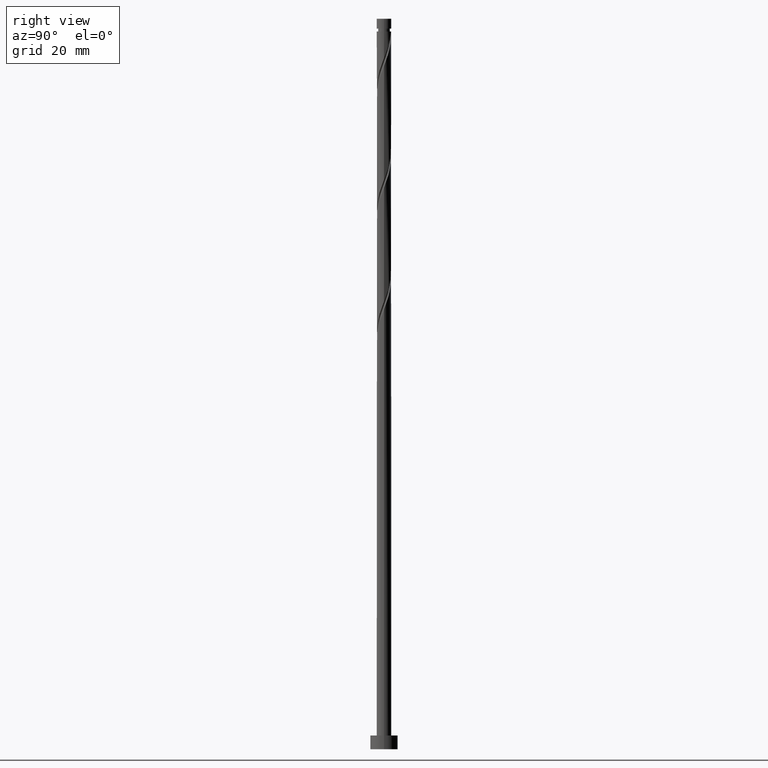
[diagram: clean part render]
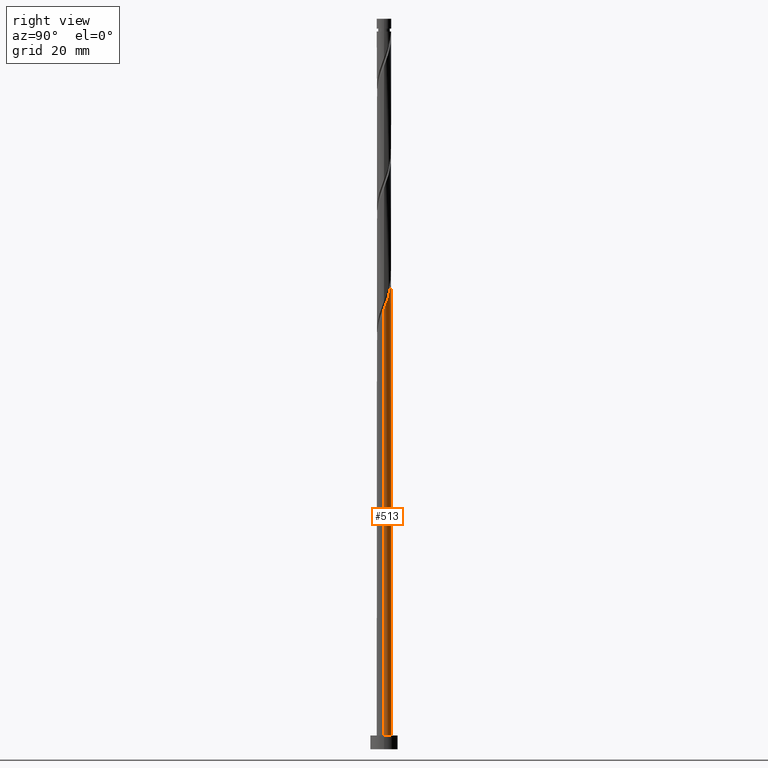
[diagram: same view with one face highlighted and labeled with its STEP entity id]
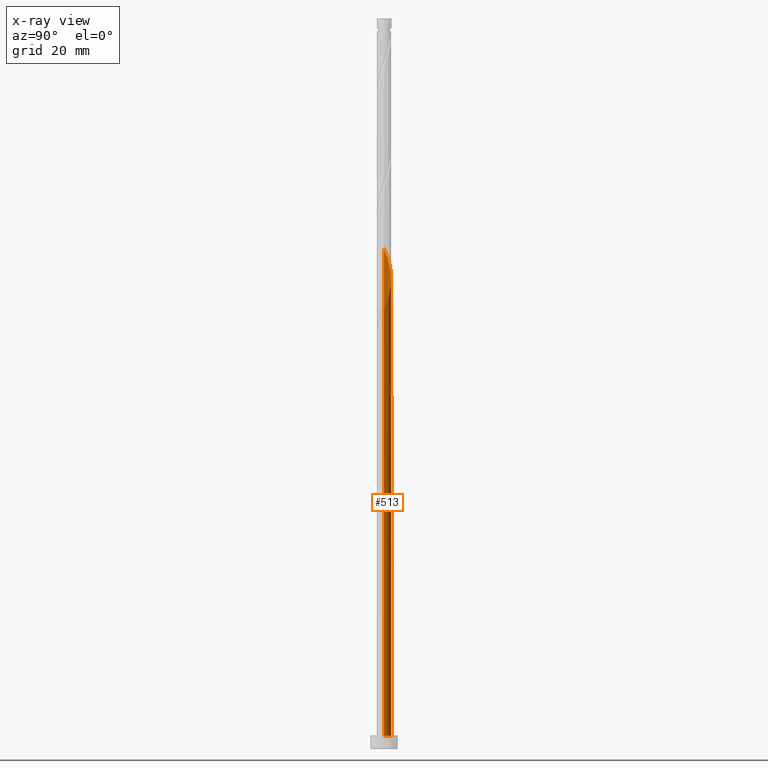
[diagram: x-ray of the same camera — body ghosted, the highlighted face saturated]
A machine part, right view. The second image highlights one B-rep face of the part: STEP entity #513.
The next image is the same camera in x-ray: the body ghosted, the highlighted face saturated — about 0% of this face is hidden behind the body in this view.
In plain terms, the highlighted cylindrical surface (edge-blend (fillet) strip) has radius 1.6 mm, axis along (-0, -0, -1).
Its self-contained STEP definition (entity closure, byte-faithful):
#9 = DIRECTION ( 'NONE',  ( -0.000000000000000000, -0.000000000000000000, -1.000000000000000000 ) ) ;
#18 = CARTESIAN_POINT ( 'NONE',  ( -1.558569438835041954, 0.3617475699012065449, 108.7193377218928703 ) ) ;
#24 = ORIENTED_EDGE ( 'NONE', *, *, #45, .F. ) ;
#45 = EDGE_CURVE ( 'NONE', #1386, #1616, #1031, .T. ) ;
#81 = CARTESIAN_POINT ( 'NONE',  ( -0.9765103075218829476, 1.267449257092179593, 80.84054984310496650 ) ) ;
#90 = CARTESIAN_POINT ( 'NONE',  ( -1.599999999999999645, 1.936908281102771207E-15, 84.72030735270891455 ) ) ;
#96 = CARTESIAN_POINT ( 'NONE',  ( -0.1362579436110415154, 1.594187496125499814, 78.41630741886255862 ) ) ;
#107 = CARTESIAN_POINT ( 'NONE',  ( -1.115576544678726467, 1.146947676645573955, 79.62842863098374835 ) ) ;
#108 = CIRCLE ( 'NONE', #1037, 1.600000000000000089 ) ;
#114 =( BOUNDED_CURVE ( )  B_SPLINE_CURVE ( 2, ( #90, #1491, #367, #843, #996, #852, #861, #870, #81, #1379, #970, #1267, #96, #988, #753 ),
 .UNSPECIFIED., .F., .T. ) 
 B_SPLINE_CURVE_WITH_KNOTS ( ( 3, 2, 2, 2, 2, 2, 2, 3 ),
 ( 0.9295252162417513286, 0.9318181818181817677, 0.9431818181818182323, 0.9545454545454545858, 0.9659090909090909394, 0.9772727272727272929, 0.9886363636363636465, 1.000000000000000000 ),
 .UNSPECIFIED. ) 
 CURVE ( )  GEOMETRIC_REPRESENTATION_ITEM ( )  RATIONAL_B_SPLINE_CURVE ( ( 0.9061101570135671190, 0.9072237824201493384, 0.9090909090909268242, 0.8998376744372290625, 0.9090909090909268242, 0.8998376744372290625, 0.9090909090909268242, 0.8998376744372290625, 0.9090909090909268242, 0.8998376744372290625, 0.9090909090909268242, 0.8998376744372290625, 0.9090909090909268242, 0.8998376744372290625, 0.9090909090909268242 ) ) 
 REPRESENTATION_ITEM ( '' )  );
#144 = CARTESIAN_POINT ( 'NONE',  ( -0.09295161489000050570, 1.613778430801160901, 103.2647922673473886 ) ) ;
#151 = CARTESIAN_POINT ( 'NONE',  ( 1.158741999431795122, 1.127048271008176838, 99.62842863098376256 ) ) ;
#159 = CARTESIAN_POINT ( 'NONE',  ( 0.5798730588620292226, 1.491223402313013757, 101.4466104491655756 ) ) ;
#167 = EDGE_CURVE ( 'NONE', #1233, #1086, #286, .T. ) ;
#183 = DIRECTION ( 'NONE',  ( -0.000000000000000000, -0.000000000000000000, -1.000000000000000000 ) ) ;
#202 = EDGE_CURVE ( 'NONE', #743, #1233, #566, .T. ) ;
#252 = CARTESIAN_POINT ( 'NONE',  ( -1.600000000000000089, 0.000000000000000000, 3.000000000000000000 ) ) ;
#278 = CARTESIAN_POINT ( 'NONE',  ( 0.3654675021120848410, 1.574596561449842946, 102.0526710552261846 ) ) ;
#285 = CARTESIAN_POINT ( 'NONE',  ( -1.599999999999999645, 1.936908281102771207E-15, 84.72030735270891455 ) ) ;
#286 = LINE ( 'NONE', #793, #1128 ) ;
#299 = CARTESIAN_POINT ( 'NONE',  ( 1.294036498596731422, 0.9409939108727102264, 99.02236802492315348 ) ) ;
#306 = EDGE_CURVE ( 'NONE', #1103, #1126, #108, .T. ) ;
#311 = DIRECTION ( 'NONE',  ( 0.000000000000000000, 0.000000000000000000, 1.000000000000000000 ) ) ;
#313 = CARTESIAN_POINT ( 'NONE',  ( 1.600000000000000089, 1.959434878635765230E-16, 160.0000000000000000 ) ) ;
#345 = ORIENTED_EDGE ( 'NONE', *, *, #815, .F. ) ;
#367 = CARTESIAN_POINT ( 'NONE',  ( -1.597352493251951611, 0.09200550147558210490, 84.47691347946863516 ) ) ;
#368 = CARTESIAN_POINT ( 'NONE',  ( -1.600000000000001865, -1.555509353163605596E-15, 83.02139839410712341 ) ) ;
#396 = CYLINDRICAL_SURFACE ( 'NONE', #401, 1.600000000000000089 ) ;
#401 = AXIS2_PLACEMENT_3D ( 'NONE', #900, #798, #1148 ) ;
#417 = DIRECTION ( 'NONE',  ( -1.000000000000000000, 0.000000000000000000, 0.000000000000000000 ) ) ;
#450 = VECTOR ( 'NONE', #183, 1000.000000000000000 ) ;
#513 = ADVANCED_FACE ( 'NONE', ( #1440 ), #396, .T. ) ;
#514 = CARTESIAN_POINT ( 'NONE',  ( -0.5438403448582378452, 1.522221569198843438, 77.81024681280192112 ) ) ;
#525 = ORIENTED_EDGE ( 'NONE', *, *, #747, .T. ) ;
#532 = ORIENTED_EDGE ( 'NONE', *, *, #202, .F. ) ;
#535 = CARTESIAN_POINT ( 'NONE',  ( 0.000000000000000000, 0.000000000000000000, 77.20418620674135468 ) ) ;
#552 = CARTESIAN_POINT ( 'NONE',  ( -1.393520357653072361, 0.7861940045602356930, 107.5072165097716379 ) ) ;
#566 =( BOUNDED_CURVE ( )  B_SPLINE_CURVE ( 2, ( #1550, #911, #787, #1308, #1334, #1427, #299, #151, #1182, #1458, #159, #278, #1302, #144, #1060, #1442, #653, #662, #1173, #808, #552, #1565, #18, #1188, #921 ),
 .UNSPECIFIED., .F., .T. ) 
 B_SPLINE_CURVE_WITH_KNOTS ( ( 3, 2, 2, 2, 2, 2, 2, 2, 2, 2, 2, 2, 3 ),
 ( 0.1795252162417511621, 0.1818181818181817677, 0.1931818181818182323, 0.2045454545454545858, 0.2159090909090909394, 0.2272727272727272929, 0.2386363636363636465, 0.2500000000000000000, 0.2613636363636363535, 0.2727272727272727071, 0.2840909090909090606, 0.2954545454545454142, 0.3045252162417513286 ),
 .UNSPECIFIED. ) 
 CURVE ( )  GEOMETRIC_REPRESENTATION_ITEM ( )  RATIONAL_B_SPLINE_CURVE ( ( 0.9061101570135726702, 0.9072237824201548895, 0.9090909090909324863, 0.8998376744372347247, 0.9090909090909324863, 0.8998376744372347247, 0.9090909090909324863, 0.8998376744372347247, 0.9090909090909324863, 0.8998376744372347247, 0.9090909090909324863, 0.8998376744372347247, 0.9090909090909324863, 0.8998376744372347247, 0.9090909090909324863, 0.8998376744372347247, 0.9090909090909324863, 0.8998376744372347247, 0.9090909090909324863, 0.8998376744372347247, 0.9090909090909324863, 0.8998376744372347247, 0.9090909090909324863, 0.9017048011080122105, 0.9061101570135728922 ) ) 
 REPRESENTATION_ITEM ( '' )  );
#578 = EDGE_CURVE ( 'NONE', #1103, #1386, #1029, .T. ) ;
#613 = CARTESIAN_POINT ( 'NONE',  ( -1.393520357653072361, 0.7861940045602356930, 80.84054984310496650 ) ) ;
#653 = CARTESIAN_POINT ( 'NONE',  ( -0.7472553546436827565, 1.414782469129565623, 105.0829740855292158 ) ) ;
#662 = CARTESIAN_POINT ( 'NONE',  ( -0.9506703644291276678, 1.307343369060288474, 105.6890346915898249 ) ) ;
#689 = EDGE_CURVE ( 'NONE', #1626, #1616, #1524, .T. ) ;
#743 = VERTEX_POINT ( 'NONE', #1348 ) ;
#747 = EDGE_CURVE ( 'NONE', #743, #1626, #1073, .T. ) ;
#753 = CARTESIAN_POINT ( 'NONE',  ( 0.3183959798741194391, 1.567999999999999838, 77.20418620674134047 ) ) ;
#760 = CARTESIAN_POINT ( 'NONE',  ( -1.280482724928325711, 0.9865519842308593246, 80.23448923704437163 ) ) ;
#763 = CARTESIAN_POINT ( 'NONE',  ( 1.600000000000000089, 1.959434878635765230E-16, 3.000000000000000000 ) ) ;
#769 = CARTESIAN_POINT ( 'NONE',  ( 0.3183959798741194391, 1.567999999999999838, 77.20418620674134047 ) ) ;
#787 = CARTESIAN_POINT ( 'NONE',  ( 1.597352493251953831, 0.09200550147558166081, 96.59812560068071718 ) ) ;
#792 = CARTESIAN_POINT ( 'NONE',  ( -0.3183959798741189395, 1.568000000000002059, 77.20418620674134047 ) ) ;
#793 = CARTESIAN_POINT ( 'NONE',  ( -1.600000000000000089, 0.000000000000000000, 160.0000000000000000 ) ) ;
#798 = DIRECTION ( 'NONE',  ( -0.000000000000000000, -0.000000000000000000, -1.000000000000000000 ) ) ;
#808 = CARTESIAN_POINT ( 'NONE',  ( -1.280482724928325711, 0.9865519842308593246, 106.9011559037110430 ) ) ;
#815 = EDGE_CURVE ( 'NONE', #1086, #1126, #114, .T. ) ;
#843 = CARTESIAN_POINT ( 'NONE',  ( -1.584124099211640768, 0.3216701178639647107, 83.87085287340801187 ) ) ;
#852 = CARTESIAN_POINT ( 'NONE',  ( -1.429330997761664834, 0.7549395507372438363, 82.65873166128680793 ) ) ;
#861 = CARTESIAN_POINT ( 'NONE',  ( -1.294036498596728979, 0.9409939108727098933, 82.05267105522618465 ) ) ;
#870 = CARTESIAN_POINT ( 'NONE',  ( -1.158741999431792458, 1.127048271008176394, 81.44661044916557557 ) ) ;
#900 = CARTESIAN_POINT ( 'NONE',  ( 0.000000000000000000, 0.000000000000000000, 160.0000000000000000 ) ) ;
#908 = CARTESIAN_POINT ( 'NONE',  ( -0.9506703644291276678, 1.307343369060288474, 79.02236802492315348 ) ) ;
#911 = CARTESIAN_POINT ( 'NONE',  ( 1.600000000000002309, 0.04604084243811343291, 96.47682973215866298 ) ) ;
#921 = CARTESIAN_POINT ( 'NONE',  ( -1.600000000000002309, 2.901623216478264807E-15, 109.6880650607737948 ) ) ;
#948 = DIRECTION ( 'NONE',  ( 1.000000000000000000, 0.000000000000000000, 0.000000000000000000 ) ) ;
#970 = CARTESIAN_POINT ( 'NONE',  ( -0.5798730588620285564, 1.491223402313011981, 79.62842863098374835 ) ) ;
#988 = CARTESIAN_POINT ( 'NONE',  ( 0.09295161489000090815, 1.613778430801158459, 77.81024681280193533 ) ) ;
#996 = CARTESIAN_POINT ( 'NONE',  ( -1.506727548486653134, 0.5383048343006040515, 83.26479226734741701 ) ) ;
#1002 = CARTESIAN_POINT ( 'NONE',  ( -0.3183959798741189395, 1.568000000000002059, 77.20418620674134047 ) ) ;
#1010 = CARTESIAN_POINT ( 'NONE',  ( -1.600000000000002531, 0.1832462838161953711, 82.53543844113582395 ) ) ;
#1029 =( BOUNDED_CURVE ( )  B_SPLINE_CURVE ( 2, ( #1002, #514, #1266, #908, #107, #760, #613, #1133, #1515, #1010, #1393 ),
 .UNSPECIFIED., .F., .T. ) 
 B_SPLINE_CURVE_WITH_KNOTS ( ( 3, 2, 2, 2, 2, 3 ),
 ( 0.000000000000000000, 0.01136363636363635354, 0.02272727272727270709, 0.03409090909090906063, 0.04545454545454541417, 0.05452521624175135639 ),
 .UNSPECIFIED. ) 
 CURVE ( )  GEOMETRIC_REPRESENTATION_ITEM ( )  RATIONAL_B_SPLINE_CURVE ( ( 0.9090909090909324863, 0.8998376744372347247, 0.9090909090909324863, 0.8998376744372347247, 0.9090909090909324863, 0.8998376744372347247, 0.9090909090909324863, 0.8998376744372347247, 0.9090909090909324863, 0.9017048011080120995, 0.9061101570135730032 ) ) 
 REPRESENTATION_ITEM ( '' )  );
#1031 = LINE ( 'NONE', #1294, #1660 ) ;
#1037 = AXIS2_PLACEMENT_3D ( 'NONE', #535, #1051, #417 ) ;
#1048 = ORIENTED_EDGE ( 'NONE', *, *, #578, .F. ) ;
#1051 = DIRECTION ( 'NONE',  ( 0.000000000000000000, -0.000000000000000000, -1.000000000000000000 ) ) ;
#1060 = CARTESIAN_POINT ( 'NONE',  ( -0.3183959798741188840, 1.568000000000002059, 103.8708528734080261 ) ) ;
#1071 = CARTESIAN_POINT ( 'NONE',  ( 0.000000000000000000, 0.000000000000000000, 3.000000000000000000 ) ) ;
#1073 = LINE ( 'NONE', #313, #450 ) ;
#1086 = VERTEX_POINT ( 'NONE', #285 ) ;
#1103 = VERTEX_POINT ( 'NONE', #792 ) ;
#1112 = ORIENTED_EDGE ( 'NONE', *, *, #306, .T. ) ;
#1126 = VERTEX_POINT ( 'NONE', #769 ) ;
#1128 = VECTOR ( 'NONE', #1449, 1000.000000000000000 ) ;
#1133 = CARTESIAN_POINT ( 'NONE',  ( -1.506557990377819456, 0.5858360248896117284, 81.44661044916557557 ) ) ;
#1148 = DIRECTION ( 'NONE',  ( -1.000000000000000000, 0.000000000000000000, 0.000000000000000000 ) ) ;
#1151 = EDGE_LOOP ( 'NONE', ( #532, #525, #1420, #24, #1048, #1112, #345, #1368 ) ) ;
#1173 = CARTESIAN_POINT ( 'NONE',  ( -1.115576544678726467, 1.146947676645573955, 106.2950952976504340 ) ) ;
#1182 = CARTESIAN_POINT ( 'NONE',  ( 0.9765103075218840578, 1.267449257092181369, 100.2344892370443716 ) ) ;
#1188 = CARTESIAN_POINT ( 'NONE',  ( -1.600000000000002309, 0.1832462838161959540, 109.2021051078024954 ) ) ;
#1233 = VERTEX_POINT ( 'NONE', #1282 ) ;
#1266 = CARTESIAN_POINT ( 'NONE',  ( -0.7472553546436827565, 1.414782469129565623, 78.41630741886255862 ) ) ;
#1267 = CARTESIAN_POINT ( 'NONE',  ( -0.3654675021120840639, 1.574596561449841170, 79.02236802492313927 ) ) ;
#1282 = CARTESIAN_POINT ( 'NONE',  ( -1.600000000000002309, 2.901623216478265202E-15, 109.6880650607737948 ) ) ;
#1294 = CARTESIAN_POINT ( 'NONE',  ( -1.600000000000000089, 0.000000000000000000, 160.0000000000000000 ) ) ;
#1302 = CARTESIAN_POINT ( 'NONE',  ( 0.1362579436110420983, 1.594187496125501813, 102.6587316612867937 ) ) ;
#1308 = CARTESIAN_POINT ( 'NONE',  ( 1.584124099211642767, 0.3216701178639645997, 97.20418620674136889 ) ) ;
#1334 = CARTESIAN_POINT ( 'NONE',  ( 1.506727548486655355, 0.5383048343006041625, 97.81024681280194955 ) ) ;
#1341 = AXIS2_PLACEMENT_3D ( 'NONE', #1071, #311, #948 ) ;
#1348 = CARTESIAN_POINT ( 'NONE',  ( 1.600000000000002309, 1.473246839294376546E-15, 96.35473172744042358 ) ) ;
#1368 = ORIENTED_EDGE ( 'NONE', *, *, #167, .F. ) ;
#1379 = CARTESIAN_POINT ( 'NONE',  ( -0.7942786156119733265, 1.407850243176182792, 80.23448923704437163 ) ) ;
#1386 = VERTEX_POINT ( 'NONE', #368 ) ;
#1393 = CARTESIAN_POINT ( 'NONE',  ( -1.600000000000001865, -1.555509353163605596E-15, 83.02139839410712341 ) ) ;
#1420 = ORIENTED_EDGE ( 'NONE', *, *, #689, .T. ) ;
#1427 = CARTESIAN_POINT ( 'NONE',  ( 1.429330997761667721, 0.7549395507372438363, 98.41630741886260125 ) ) ;
#1440 = FACE_OUTER_BOUND ( 'NONE', #1151, .T. ) ;
#1442 = CARTESIAN_POINT ( 'NONE',  ( -0.5438403448582378452, 1.522221569198843438, 104.4769134794685925 ) ) ;
#1449 = DIRECTION ( 'NONE',  ( -0.000000000000000000, -0.000000000000000000, -1.000000000000000000 ) ) ;
#1458 = CARTESIAN_POINT ( 'NONE',  ( 0.7942786156119744367, 1.407850243176184568, 100.8405498431049523 ) ) ;
#1491 = CARTESIAN_POINT ( 'NONE',  ( -1.600000000000000089, 0.04604084243811722849, 84.59820934799068937 ) ) ;
#1515 = CARTESIAN_POINT ( 'NONE',  ( -1.558569438835041954, 0.3617475699012065449, 82.05267105522619886 ) ) ;
#1524 = CIRCLE ( 'NONE', #1341, 1.600000000000000089 ) ;
#1550 = CARTESIAN_POINT ( 'NONE',  ( 1.600000000000002309, 1.473246839294376546E-15, 96.35473172744043779 ) ) ;
#1565 = CARTESIAN_POINT ( 'NONE',  ( -1.506557990377819456, 0.5858360248896117284, 108.1132771158322612 ) ) ;
#1616 = VERTEX_POINT ( 'NONE', #252 ) ;
#1626 = VERTEX_POINT ( 'NONE', #763 ) ;
#1660 = VECTOR ( 'NONE', #9, 1000.000000000000000 ) ;